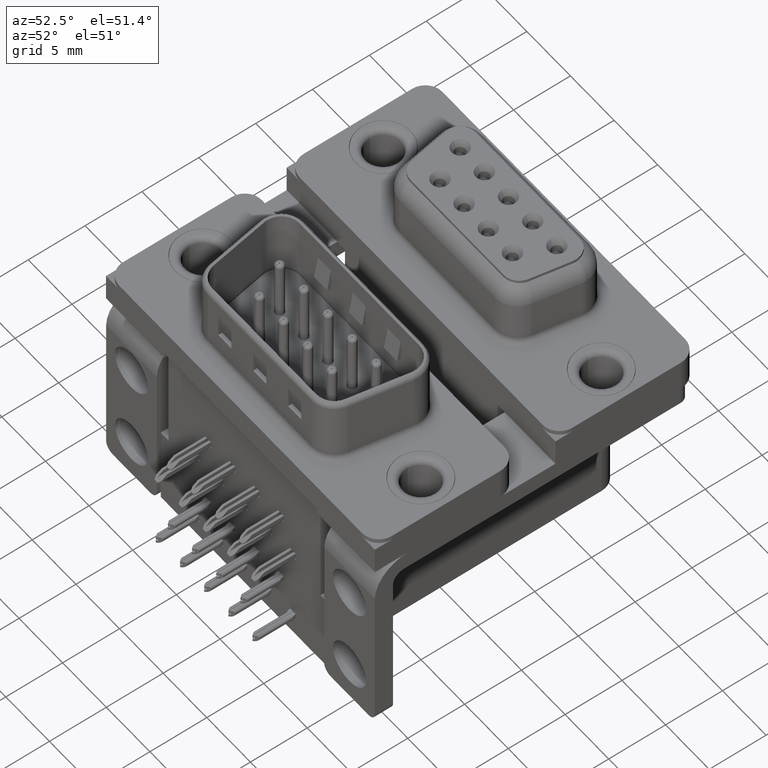
[diagram: clean part render]
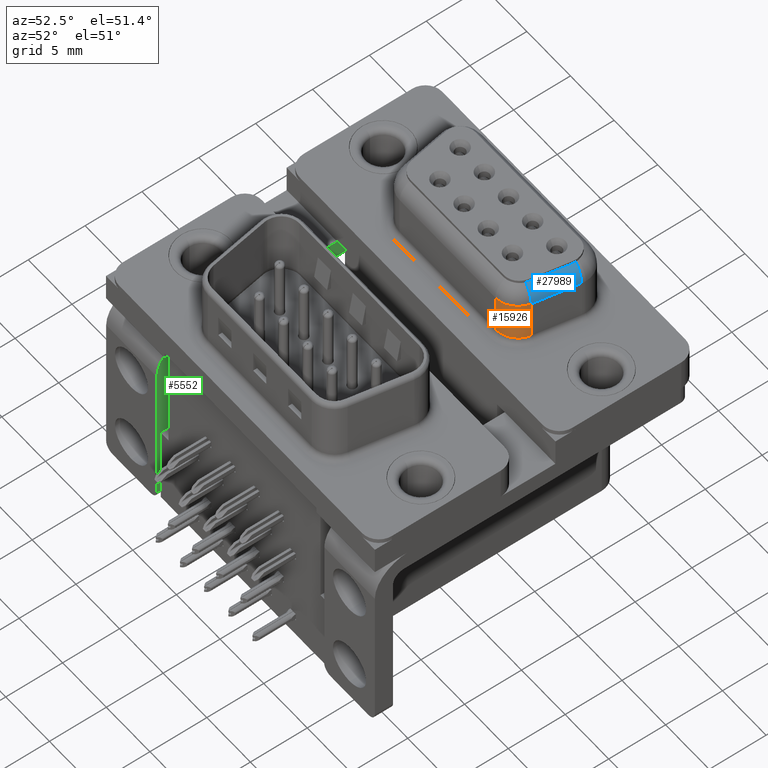
[diagram: same view with three faces highlighted in distinct colors, each labeled with its STEP entity id]
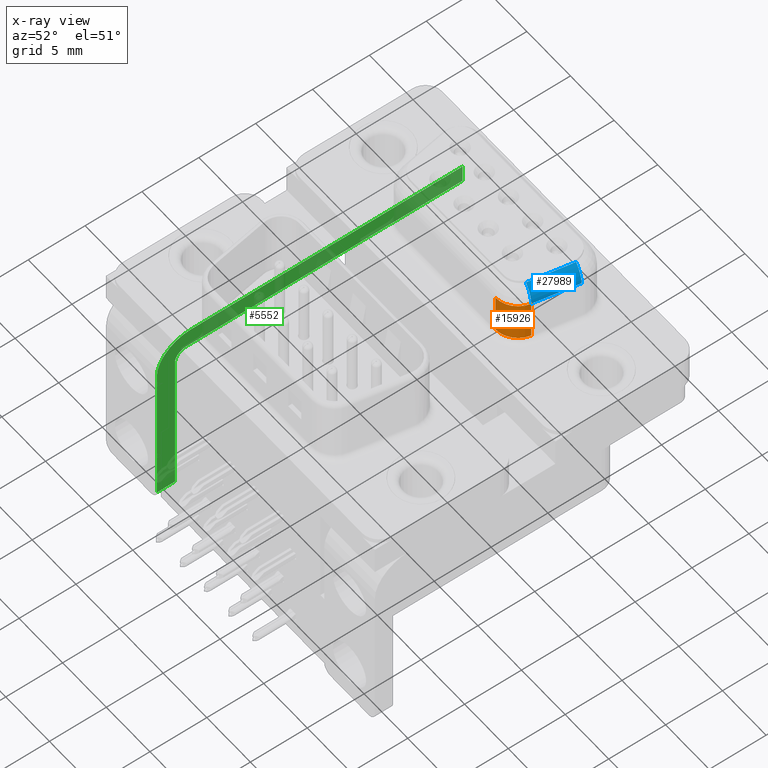
[diagram: x-ray of the same camera — body ghosted, the three highlighted faces saturated]
A machine part, auxiliary view with three faces highlighted in distinct colors.
The next image is the same camera in x-ray (body ghosted, the three faces saturated) — at least one of them is partly hidden behind the body in this view.
Their STEP definitions:

[orange] entity #15926 — the highlighted cylindrical surface (edge-blend (fillet) strip) has radius 2 mm, axis along (-0, -0, -1).
#3064 = LINE ( 'NONE', #16306, #17573 ) ;
#3851 = ORIENTED_EDGE ( 'NONE', *, *, #14686, .T. ) ;
#4405 = AXIS2_PLACEMENT_3D ( 'NONE', #31845, #31668, #15852 ) ;
#5163 = CARTESIAN_POINT ( 'NONE',  ( 17.97232477523701277, -1.950000000000003730, 4.450000000000000178 ) ) ;
#5234 = CARTESIAN_POINT ( 'NONE',  ( 19.94194028126143081, -2.297296355333849682, 4.450000000000000178 ) ) ;
#7850 = CARTESIAN_POINT ( 'NONE',  ( 17.97232477523701277, -3.950000000000001954, 4.450000000000000178 ) ) ;
#8162 = CARTESIAN_POINT ( 'NONE',  ( 17.97232477523701277, -3.950000000000001954, 6.200000000000000178 ) ) ;
#8645 = ORIENTED_EDGE ( 'NONE', *, *, #21464, .T. ) ;
#8992 = VERTEX_POINT ( 'NONE', #12199 ) ;
#9457 = VERTEX_POINT ( 'NONE', #13190 ) ;
#9881 = CIRCLE ( 'NONE', #22774, 2.000000000000001776 ) ;
#11669 = EDGE_CURVE ( 'NONE', #18180, #8992, #3064, .T. ) ;
#12199 = CARTESIAN_POINT ( 'NONE',  ( 19.94194028126143081, -2.297296355333849682, 0.8999999999999998002 ) ) ;
#12378 = FACE_OUTER_BOUND ( 'NONE', #33806, .T. ) ;
#13190 = CARTESIAN_POINT ( 'NONE',  ( 17.97232477523701277, -3.950000000000001954, 0.8999999999999998002 ) ) ;
#13989 = CIRCLE ( 'NONE', #4405, 2.000000000000001776 ) ;
#14686 = EDGE_CURVE ( 'NONE', #18180, #19770, #9881, .T. ) ;
#15852 = DIRECTION ( 'NONE',  ( 1.000000000000000000, 0.0000000000000000000, 0.0000000000000000000 ) ) ;
#15926 = ADVANCED_FACE ( 'NONE', ( #12378 ), #34549, .T. ) ;
#16087 = CARTESIAN_POINT ( 'NONE',  ( 17.97232477523701277, -1.950000000000003730, 6.200000000000000178 ) ) ;
#16306 = CARTESIAN_POINT ( 'NONE',  ( 19.94194028126143081, -2.297296355333849682, 6.200000000000000178 ) ) ;
#17573 = VECTOR ( 'NONE', #32639, 1000.000000000000000 ) ;
#18180 = VERTEX_POINT ( 'NONE', #5234 ) ;
#19770 = VERTEX_POINT ( 'NONE', #7850 ) ;
#20762 = ORIENTED_EDGE ( 'NONE', *, *, #11669, .F. ) ;
#21464 = EDGE_CURVE ( 'NONE', #19770, #9457, #29070, .T. ) ;
#22181 = EDGE_CURVE ( 'NONE', #9457, #8992, #13989, .T. ) ;
#22774 = AXIS2_PLACEMENT_3D ( 'NONE', #5163, #31369, #32075 ) ;
#23449 = DIRECTION ( 'NONE',  ( -0.0000000000000000000, -0.0000000000000000000, -1.000000000000000000 ) ) ;
#24328 = DIRECTION ( 'NONE',  ( -0.0000000000000000000, -0.0000000000000000000, -1.000000000000000000 ) ) ;
#26087 = DIRECTION ( 'NONE',  ( -1.000000000000000000, 0.0000000000000000000, 0.0000000000000000000 ) ) ;
#29070 = LINE ( 'NONE', #8162, #30755 ) ;
#29502 = AXIS2_PLACEMENT_3D ( 'NONE', #16087, #23449, #26087 ) ;
#30755 = VECTOR ( 'NONE', #24328, 1000.000000000000000 ) ;
#31369 = DIRECTION ( 'NONE',  ( -0.0000000000000000000, -0.0000000000000000000, -1.000000000000000000 ) ) ;
#31668 = DIRECTION ( 'NONE',  ( 0.0000000000000000000, 0.0000000000000000000, 1.000000000000000000 ) ) ;
#31845 = CARTESIAN_POINT ( 'NONE',  ( 17.97232477523701277, -1.950000000000003730, 0.8999999999999998002 ) ) ;
#32075 = DIRECTION ( 'NONE',  ( -1.000000000000000000, 0.0000000000000000000, 0.0000000000000000000 ) ) ;
#32639 = DIRECTION ( 'NONE',  ( -0.0000000000000000000, -0.0000000000000000000, -1.000000000000000000 ) ) ;
#33806 = EDGE_LOOP ( 'NONE', ( #20762, #3851, #8645, #33887 ) ) ;
#33887 = ORIENTED_EDGE ( 'NONE', *, *, #22181, .T. ) ;
#34549 = CYLINDRICAL_SURFACE ( 'NONE', #29502, 2.000000000000001776 ) ;

[blue] entity #27989 — the highlighted cylindrical surface (edge-blend (fillet) strip) has radius 1.75 mm, axis along (0.1736, 0.9848, 0).
#1731 = CARTESIAN_POINT ( 'NONE',  ( 20.62961550602442173, 1.602703644666150673, 4.450000000000000178 ) ) ;
#1913 = CARTESIAN_POINT ( 'NONE',  ( 18.21852671349006414, -1.993412044416734030, 4.450000000000000178 ) ) ;
#2248 = CARTESIAN_POINT ( 'NONE',  ( 19.16218731147687038, -2.042038018699032786, 5.927528686315412187 ) ) ;
#2573 = CARTESIAN_POINT ( 'NONE',  ( 19.80999714683494517, 1.747224475275251709, 5.940052852112478909 ) ) ;
#2727 = CIRCLE ( 'NONE', #22392, 1.749999999999998668 ) ;
#4154 = DIRECTION ( 'NONE',  ( -0.9848077530122090195, 0.1736481776669252797, 0.0000000000000000000 ) ) ;
#4382 = CYLINDRICAL_SURFACE ( 'NONE', #24667, 1.749999999999998890 ) ;
#5234 = CARTESIAN_POINT ( 'NONE',  ( 19.94194028126143081, -2.297296355333849682, 4.450000000000000178 ) ) ;
#5321 = CARTESIAN_POINT ( 'NONE',  ( 19.13089731314603270, -2.154287597541233001, 5.934654486838701892 ) ) ;
#6420 = ORIENTED_EDGE ( 'NONE', *, *, #28349, .T. ) ;
#6624 = VERTEX_POINT ( 'NONE', #12361 ) ;
#7007 = CARTESIAN_POINT ( 'NONE',  ( 19.14204799405747082, -2.156253763439194060, 5.927528686315413076 ) ) ;
#7223 = LINE ( 'NONE', #1731, #15094 ) ;
#7582 = CARTESIAN_POINT ( 'NONE',  ( 18.90620193825305506, 1.906587955583270100, 4.450000000000000178 ) ) ;
#7734 = CARTESIAN_POINT ( 'NONE',  ( 19.13089731314603270, -2.154287597541233001, 5.934654486838701892 ) ) ;
#9657 = VERTEX_POINT ( 'NONE', #33715 ) ;
#10385 = CARTESIAN_POINT ( 'NONE',  ( 19.14835945061853906, -2.098654028346357059, 5.929951803701015933 ) ) ;
#10847 = ORIENTED_EDGE ( 'NONE', *, *, #28108, .F. ) ;
#10888 = VERTEX_POINT ( 'NONE', #15909 ) ;
#11579 = ORIENTED_EDGE ( 'NONE', *, *, #12818, .T. ) ;
#12361 = CARTESIAN_POINT ( 'NONE',  ( 20.62961550602442173, 1.602703644666150673, 4.450000000000000178 ) ) ;
#12818 = EDGE_CURVE ( 'NONE', #10888, #25611, #25287, .T. ) ;
#13386 = DIRECTION ( 'NONE',  ( -0.9848077530122091305, 0.1736481776669241417, 0.0000000000000000000 ) ) ;
#14676 = ORIENTED_EDGE ( 'NONE', *, *, #32074, .T. ) ;
#14817 = EDGE_LOOP ( 'NONE', ( #6420, #11579, #27236, #21737, #10847, #14676 ) ) ;
#15094 = VECTOR ( 'NONE', #31312, 1000.000000000000000 ) ;
#15909 = CARTESIAN_POINT ( 'NONE',  ( 19.17234603408687832, -1.984425039850346684, 5.927528686315413076 ) ) ;
#17555 = LINE ( 'NONE', #7007, #18539 ) ;
#18180 = VERTEX_POINT ( 'NONE', #5234 ) ;
#18539 = VECTOR ( 'NONE', #33917, 1000.000000000000000 ) ;
#18624 = CARTESIAN_POINT ( 'NONE',  ( 19.80304080516432208, 1.592422749089261735, 5.927528686315417517 ) ) ;
#19234 = EDGE_CURVE ( 'NONE', #25611, #18180, #27939, .T. ) ;
#20590 = DIRECTION ( 'NONE',  ( 0.1736481776669249744, 0.9848077530122090195, 0.0000000000000000000 ) ) ;
#21210 = AXIS2_PLACEMENT_3D ( 'NONE', #22812, #33544, #4154 ) ;
#21636 = DIRECTION ( 'NONE',  ( 0.1736481776669239474, 0.9848077530122093526, -0.0000000000000000000 ) ) ;
#21737 = ORIENTED_EDGE ( 'NONE', *, *, #27922, .F. ) ;
#21745 = CARTESIAN_POINT ( 'NONE',  ( 19.80983762622525290, 1.669634689808884520, 5.931851260962048400 ) ) ;
#22383 = VERTEX_POINT ( 'NONE', #26701 ) ;
#22392 = AXIS2_PLACEMENT_3D ( 'NONE', #7582, #21636, #13386 ) ;
#22812 = CARTESIAN_POINT ( 'NONE',  ( 18.21852671349006414, -1.993412044416730700, 4.450000000000000178 ) ) ;
#23020 = CARTESIAN_POINT ( 'NONE',  ( 19.17234603408687832, -1.984425039850346684, 5.927528686315413076 ) ) ;
#24667 = AXIS2_PLACEMENT_3D ( 'NONE', #1913, #20590, #25849 ) ;
#25287 = B_SPLINE_CURVE_WITH_KNOTS ( 'NONE', 3,
 ( #23020, #2248, #10385, #7734 ),
 .UNSPECIFIED., .F., .F.,
 ( 4, 4 ),
 ( 0.0000000000000000000, 0.0001749916055301494518 ),
 .UNSPECIFIED. ) ;
#25611 = VERTEX_POINT ( 'NONE', #5321 ) ;
#25849 = DIRECTION ( 'NONE',  ( -0.9848077530122090195, 0.1736481776669251409, 0.0000000000000000000 ) ) ;
#26701 = CARTESIAN_POINT ( 'NONE',  ( 19.78949046656648036, 1.515574960149652872, 5.927528686315417517 ) ) ;
#27236 = ORIENTED_EDGE ( 'NONE', *, *, #19234, .T. ) ;
#27922 = EDGE_CURVE ( 'NONE', #6624, #18180, #7223, .T. ) ;
#27939 = CIRCLE ( 'NONE', #21210, 1.749999999999998890 ) ;
#27989 = ADVANCED_FACE ( 'NONE', ( #28677 ), #4382, .T. ) ;
#28108 = EDGE_CURVE ( 'NONE', #9657, #6624, #2727, .T. ) ;
#28349 = EDGE_CURVE ( 'NONE', #22383, #10888, #17555, .T. ) ;
#28677 = FACE_OUTER_BOUND ( 'NONE', #14817, .T. ) ;
#29329 = CARTESIAN_POINT ( 'NONE',  ( 19.78949046656648036, 1.515574960149652872, 5.927528686315417517 ) ) ;
#31312 = DIRECTION ( 'NONE',  ( -0.1736481776669249744, -0.9848077530122090195, -0.0000000000000000000 ) ) ;
#32074 = EDGE_CURVE ( 'NONE', #9657, #22383, #34576, .T. ) ;
#33544 = DIRECTION ( 'NONE',  ( 0.1736481776669251686, 0.9848077530122091305, -0.0000000000000000000 ) ) ;
#33715 = CARTESIAN_POINT ( 'NONE',  ( 19.80999714683494517, 1.747224475275251709, 5.940052852112478909 ) ) ;
#33917 = DIRECTION ( 'NONE',  ( -0.1736481776669249744, -0.9848077530122090195, -0.0000000000000000000 ) ) ;
#34576 = B_SPLINE_CURVE_WITH_KNOTS ( 'NONE', 3,
 ( #2573, #21745, #18624, #29329 ),
 .UNSPECIFIED., .F., .F.,
 ( 4, 4 ),
 ( 0.0000000000000000000, 0.0002328924140509313777 ),
 .UNSPECIFIED. ) ;

[green] entity #5552 — the highlighted planar face has unit normal (1, 0, 0).
#472 = VERTEX_POINT ( 'NONE', #2257 ) ;
#760 = DIRECTION ( 'NONE',  ( 0.0000000000000000000, 5.193782862206009375E-17, -1.000000000000000000 ) ) ;
#966 = EDGE_CURVE ( 'NONE', #10388, #29555, #10705, .T. ) ;
#1352 = CARTESIAN_POINT ( 'NONE',  ( 2.899999999999999911, -3.675000000000002931, -4.099999999999999645 ) ) ;
#2257 = CARTESIAN_POINT ( 'NONE',  ( 2.899999999999999911, -6.275000000000000355, -18.44999999999999929 ) ) ;
#2593 = LINE ( 'NONE', #16510, #5060 ) ;
#2704 = VECTOR ( 'NONE', #14191, 1000.000000000000000 ) ;
#3950 = EDGE_LOOP ( 'NONE', ( #12210, #22315, #9882, #26991, #33728, #29570, #5171, #16552 ) ) ;
#4214 = LINE ( 'NONE', #25676, #24355 ) ;
#5060 = VECTOR ( 'NONE', #29347, 1000.000000000000000 ) ;
#5171 = ORIENTED_EDGE ( 'NONE', *, *, #32592, .T. ) ;
#5518 = AXIS2_PLACEMENT_3D ( 'NONE', #16798, #11001, #11516 ) ;
#5552 = ADVANCED_FACE ( 'NONE', ( #16959 ), #10832, .T. ) ;
#6623 = CARTESIAN_POINT ( 'NONE',  ( 2.899999999999999911, -3.274999999999993250, -2.500000000000000000 ) ) ;
#6793 = AXIS2_PLACEMENT_3D ( 'NONE', #20043, #11785, #22496 ) ;
#7765 = EDGE_CURVE ( 'NONE', #31273, #15845, #4214, .T. ) ;
#8204 = EDGE_CURVE ( 'NONE', #472, #10388, #15286, .T. ) ;
#8788 = VECTOR ( 'NONE', #18523, 1000.000000000000000 ) ;
#8852 = EDGE_CURVE ( 'NONE', #29831, #472, #27191, .T. ) ;
#9882 = ORIENTED_EDGE ( 'NONE', *, *, #966, .T. ) ;
#10388 = VERTEX_POINT ( 'NONE', #25083 ) ;
#10418 = DIRECTION ( 'NONE',  ( 0.0000000000000000000, 0.0000000000000000000, 1.000000000000000000 ) ) ;
#10705 = LINE ( 'NONE', #32656, #2704 ) ;
#10822 = VECTOR ( 'NONE', #760, 1000.000000000000000 ) ;
#10832 = PLANE ( 'NONE',  #5518 ) ;
#11001 = DIRECTION ( 'NONE',  ( 1.000000000000000000, 0.0000000000000000000, -0.0000000000000000000 ) ) ;
#11516 = DIRECTION ( 'NONE',  ( -0.0000000000000000000, 0.0000000000000000000, -1.000000000000000000 ) ) ;
#11785 = DIRECTION ( 'NONE',  ( -1.000000000000000000, -0.0000000000000000000, 0.0000000000000000000 ) ) ;
#11824 = CIRCLE ( 'NONE', #16342, 3.000000000000000888 ) ;
#12210 = ORIENTED_EDGE ( 'NONE', *, *, #8852, .T. ) ;
#12620 = VERTEX_POINT ( 'NONE', #1352 ) ;
#13126 = VERTEX_POINT ( 'NONE', #6623 ) ;
#14191 = DIRECTION ( 'NONE',  ( 0.0000000000000000000, -1.723235241036563665E-16, 1.000000000000000000 ) ) ;
#14466 = DIRECTION ( 'NONE',  ( 0.0000000000000000000, 0.0000000000000000000, -1.000000000000000000 ) ) ;
#15286 = LINE ( 'NONE', #33928, #22063 ) ;
#15845 = VERTEX_POINT ( 'NONE', #33838 ) ;
#16342 = AXIS2_PLACEMENT_3D ( 'NONE', #20081, #28333, #14466 ) ;
#16510 = CARTESIAN_POINT ( 'NONE',  ( 2.899999999999999911, 21.37499999999999645, -2.500000000000000000 ) ) ;
#16552 = ORIENTED_EDGE ( 'NONE', *, *, #33010, .T. ) ;
#16798 = CARTESIAN_POINT ( 'NONE',  ( 2.899999999999999911, 0.0000000000000000000, 0.0000000000000000000 ) ) ;
#16959 = FACE_OUTER_BOUND ( 'NONE', #3950, .T. ) ;
#16970 = CARTESIAN_POINT ( 'NONE',  ( 2.899999999999999911, -6.275000000000001243, -2.500000000000000000 ) ) ;
#17403 = EDGE_CURVE ( 'NONE', #12620, #31273, #24135, .T. ) ;
#18523 = DIRECTION ( 'NONE',  ( 0.0000000000000000000, 1.000000000000000000, 0.0000000000000000000 ) ) ;
#20043 = CARTESIAN_POINT ( 'NONE',  ( 2.899999999999999911, -3.675000000000002931, -5.099999999999999645 ) ) ;
#20081 = CARTESIAN_POINT ( 'NONE',  ( 2.899999999999999911, -3.275000000000000799, -5.500000000000000000 ) ) ;
#20444 = CARTESIAN_POINT ( 'NONE',  ( 2.899999999999999911, -6.275000000000001243, -5.500000000000000000 ) ) ;
#22063 = VECTOR ( 'NONE', #23362, 1000.000000000000000 ) ;
#22315 = ORIENTED_EDGE ( 'NONE', *, *, #8204, .T. ) ;
#22496 = DIRECTION ( 'NONE',  ( 0.0000000000000000000, 0.0000000000000000000, -1.000000000000000000 ) ) ;
#23074 = CARTESIAN_POINT ( 'NONE',  ( 2.899999999999999911, 20.62499999999999645, -4.099999999999999645 ) ) ;
#23284 = CARTESIAN_POINT ( 'NONE',  ( 2.899999999999999911, -4.675000000000003375, -5.100000000000000533 ) ) ;
#23362 = DIRECTION ( 'NONE',  ( -0.0000000000000000000, 1.000000000000000000, 0.0000000000000000000 ) ) ;
#24135 = LINE ( 'NONE', #28871, #8788 ) ;
#24355 = VECTOR ( 'NONE', #10418, 1000.000000000000000 ) ;
#25083 = CARTESIAN_POINT ( 'NONE',  ( 2.899999999999999911, -4.675000000000000711, -18.44999999999999929 ) ) ;
#25323 = CIRCLE ( 'NONE', #6793, 1.000000000000000000 ) ;
#25676 = CARTESIAN_POINT ( 'NONE',  ( 2.899999999999999911, 20.62499999999999645, -2.500000000000000000 ) ) ;
#26991 = ORIENTED_EDGE ( 'NONE', *, *, #33377, .T. ) ;
#27191 = LINE ( 'NONE', #16970, #10822 ) ;
#28333 = DIRECTION ( 'NONE',  ( 1.000000000000000000, 0.0000000000000000000, -0.0000000000000000000 ) ) ;
#28871 = CARTESIAN_POINT ( 'NONE',  ( 2.899999999999999911, -4.675000000000003375, -4.099999999999999645 ) ) ;
#29347 = DIRECTION ( 'NONE',  ( 0.0000000000000000000, -1.000000000000000000, 0.0000000000000000000 ) ) ;
#29555 = VERTEX_POINT ( 'NONE', #23284 ) ;
#29570 = ORIENTED_EDGE ( 'NONE', *, *, #7765, .T. ) ;
#29831 = VERTEX_POINT ( 'NONE', #20444 ) ;
#31273 = VERTEX_POINT ( 'NONE', #23074 ) ;
#32592 = EDGE_CURVE ( 'NONE', #15845, #13126, #2593, .T. ) ;
#32656 = CARTESIAN_POINT ( 'NONE',  ( 2.899999999999999911, -4.675000000000000711, -19.19999999999999929 ) ) ;
#33010 = EDGE_CURVE ( 'NONE', #13126, #29831, #11824, .T. ) ;
#33377 = EDGE_CURVE ( 'NONE', #29555, #12620, #25323, .T. ) ;
#33728 = ORIENTED_EDGE ( 'NONE', *, *, #17403, .T. ) ;
#33838 = CARTESIAN_POINT ( 'NONE',  ( 2.899999999999999911, 20.62499999999999645, -2.500000000000000000 ) ) ;
#33928 = CARTESIAN_POINT ( 'NONE',  ( 2.899999999999999911, -4.675000000000000711, -18.44999999999999929 ) ) ;